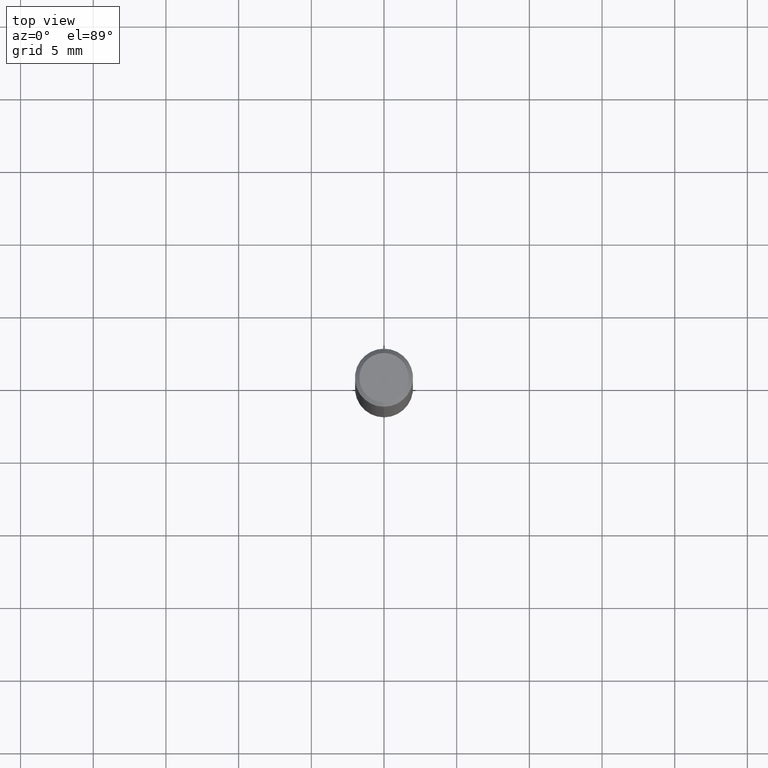
[diagram: clean part render]
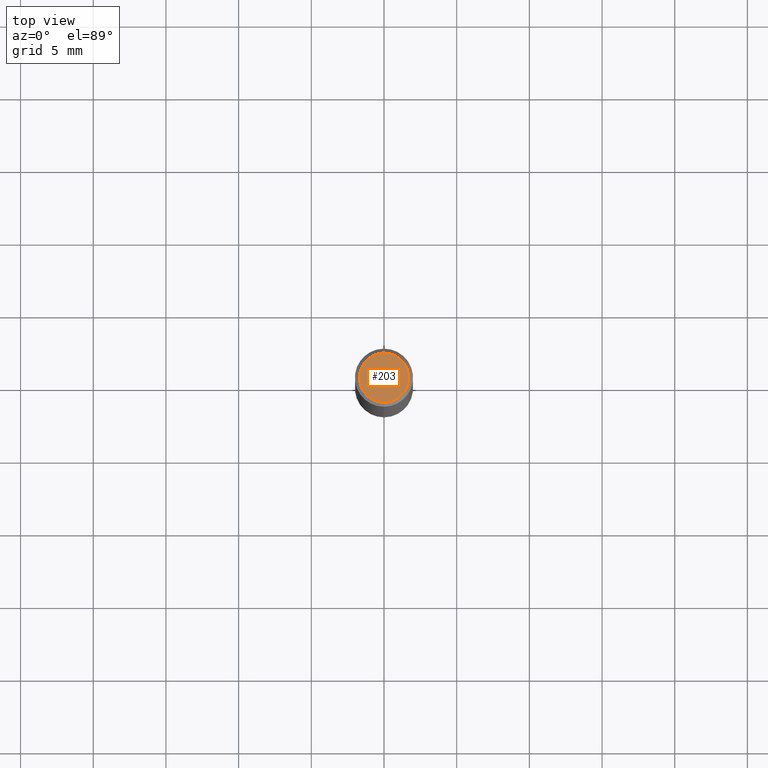
[diagram: same view with one face highlighted and labeled with its STEP entity id]
A machine part, top view. The second image highlights one B-rep face of the part: STEP entity #203.
In plain terms, the highlighted planar face has unit normal (-0, 0, 1).
Its self-contained STEP definition (entity closure, byte-faithful):
#203=ADVANCED_FACE('',(#442),#443,.T.);
#215=VERTEX_POINT('',#459);
#239=EDGE_CURVE('',#215,#297,#487,.T.);
#279=EDGE_CURVE('',#297,#215,#531,.T.);
#297=VERTEX_POINT('',#552);
#442=FACE_OUTER_BOUND('',#724,.T.);
#443=PLANE('',#725);
#459=CARTESIAN_POINT('',(2.08183080149804E-016,-1.7,0.00999999999999801));
#487=CIRCLE('',#780,1.7);
#531=CIRCLE('',#834,1.7);
#552=CARTESIAN_POINT('',(0.0,1.7,0.00999999999999801));
#724=EDGE_LOOP('',(#1018,#1019));
#725=AXIS2_PLACEMENT_3D('',#1020,#1021,#1022);
#780=AXIS2_PLACEMENT_3D('',#1094,#1095,#1096);
#834=AXIS2_PLACEMENT_3D('',#1150,#1151,#1152);
#1018=ORIENTED_EDGE('',*,*,#279,.F.);
#1019=ORIENTED_EDGE('',*,*,#239,.F.);
#1020=CARTESIAN_POINT('',(0.0,0.85,0.00999999999999801));
#1021=DIRECTION('',(-0.0,0.0,1.0));
#1022=DIRECTION('',(0.0,-1.0,0.0));
#1094=CARTESIAN_POINT('',(0.0,0.0,0.00999999999999801));
#1095=DIRECTION('',(0.0,0.0,-1.0));
#1096=DIRECTION('',(0.0,1.0,0.0));
#1150=CARTESIAN_POINT('',(0.0,0.0,0.00999999999999801));
#1151=DIRECTION('',(0.0,0.0,-1.0));
#1152=DIRECTION('',(0.0,1.0,0.0));